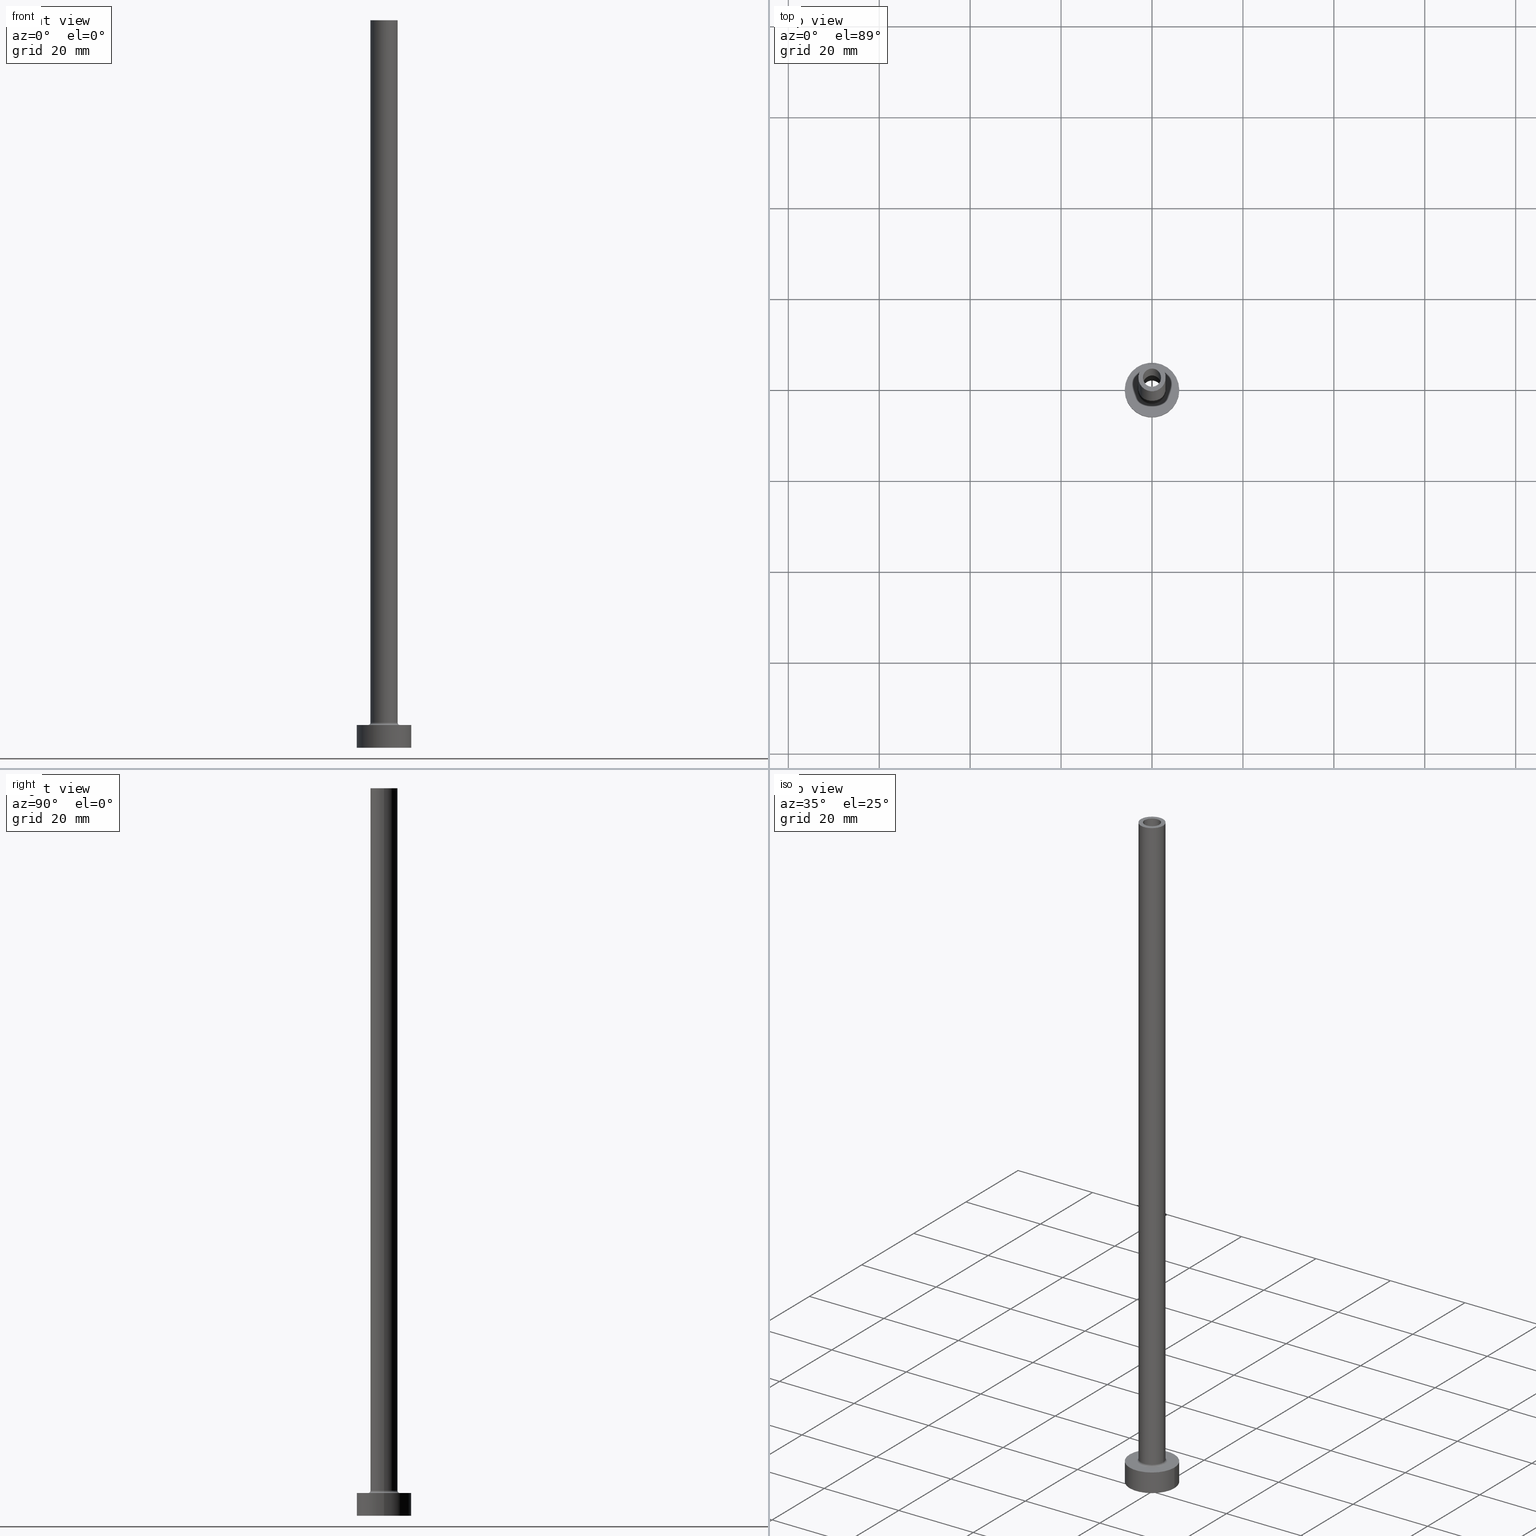
[diagram: canonical four-view strip — front | top / right | iso, engineering-drawing reading convention]
A machine part, canonical four-view strip (front | top / right | iso — engineering-drawing reading convention). The complete STEP part file that produces these views, byte-faithful:
ISO-10303-21;
HEADER;
FILE_DESCRIPTION (( 'STEP AP203' ),
    '1' );
FILE_NAME ('4445.STEP',
    '2023-02-13T11:09:07',
    ( '' ),
    ( '' ),
    'SwSTEP 2.0',
    'SolidWorks 2019',
    '' );
FILE_SCHEMA (( 'CONFIG_CONTROL_DESIGN' ));
ENDSEC;

DATA;
#1 = EDGE_LOOP ( 'NONE', ( #184, #66, #251, #192 ) ) ;
#2 = EDGE_CURVE ( 'NONE', #70, #95, #385, .T. ) ;
#3 = ADVANCED_FACE ( 'NONE', ( #197 ), #239, .F. ) ;
#4 = DIRECTION ( 'NONE',  ( 1.224646799147353207E-16, 1.000000000000000000, -0.000000000000000000 ) ) ;
#5 = EDGE_LOOP ( 'NONE', ( #178, #367, #235, #407 ) ) ;
#6 = CARTESIAN_POINT ( 'NONE',  ( 3.000000000000000444, 3.673940397442060361E-16, 160.0000000000000000 ) ) ;
#7 = AXIS2_PLACEMENT_3D ( 'NONE', #259, #52, #336 ) ;
#8 = MANIFOLD_SOLID_BREP ( 'Odebrat vysunut�m4', #379 ) ;
#9 = CARTESIAN_POINT ( 'NONE',  ( 0.000000000000000000, 0.000000000000000000, 5.000000000000000000 ) ) ;
#10 = ADVANCED_FACE ( 'NONE', ( #301 ), #418, .T. ) ;
#11 = FACE_BOUND ( 'NONE', #283, .T. ) ;
#12 = EDGE_CURVE ( 'NONE', #255, #173, #331, .T. ) ;
#13 = EDGE_LOOP ( 'NONE', ( #241, #121 ) ) ;
#14 = CARTESIAN_POINT ( 'NONE',  ( 0.000000000000000000, 0.000000000000000000, 5.000000000000000000 ) ) ;
#15 = DIRECTION ( 'NONE',  ( 0.000000000000000000, 0.000000000000000000, -1.000000000000000000 ) ) ;
#16 = AXIS2_PLACEMENT_3D ( 'NONE', #256, #228, #370 ) ;
#17 = LOCAL_TIME ( 12, 9, 7.000000000000000000, #368 ) ;
#18 = DIRECTION ( 'NONE',  ( 1.000000000000000000, 0.000000000000000000, 0.000000000000000000 ) ) ;
#19 = DIRECTION ( 'NONE',  ( 1.000000000000000000, 0.000000000000000000, 0.000000000000000000 ) ) ;
#20 = DESIGN_CONTEXT ( 'detailed design', #391, 'design' ) ;
#21 = ADVANCED_FACE ( 'NONE', ( #307 ), #157, .T. ) ;
#22 = CARTESIAN_POINT ( 'NONE',  ( 0.000000000000000000, 0.000000000000000000, 121.0811183182043322 ) ) ;
#23 = CARTESIAN_POINT ( 'NONE',  ( 3.500000000000000444, 0.000000000000000000, 5.000000000000002665 ) ) ;
#24 = AXIS2_PLACEMENT_3D ( 'NONE', #246, #138, #287 ) ;
#25 = PERSON_AND_ORGANIZATION ( #388, #333 ) ;
#26 = AXIS2_PLACEMENT_3D ( 'NONE', #409, #93, #445 ) ;
#27 = CC_DESIGN_APPROVAL ( #303, ( #87 ) ) ;
#28 = CYLINDRICAL_SURFACE ( 'NONE', #381, 6.000000000000000888 ) ;
#29 = DIRECTION ( 'NONE',  ( 0.000000000000000000, 0.000000000000000000, 1.000000000000000000 ) ) ;
#30 = CARTESIAN_POINT ( 'NONE',  ( 0.000000000000000000, 0.000000000000000000, 160.0000000000000000 ) ) ;
#31 = PERSON_AND_ORGANIZATION ( #388, #333 ) ;
#32 = CARTESIAN_POINT ( 'NONE',  ( -6.000000000000000888, 0.000000000000000000, 0.000000000000000000 ) ) ;
#33 = VERTEX_POINT ( 'NONE', #32 ) ;
#34 = ORIENTED_EDGE ( 'NONE', *, *, #242, .T. ) ;
#35 =( GEOMETRIC_REPRESENTATION_CONTEXT ( 3 ) GLOBAL_UNCERTAINTY_ASSIGNED_CONTEXT ( ( #47 ) ) GLOBAL_UNIT_ASSIGNED_CONTEXT ( ( #124, #263, #160 ) ) REPRESENTATION_CONTEXT ( 'NONE', 'WORKASPACE' ) );
#36 = DIRECTION ( 'NONE',  ( -0.000000000000000000, -0.000000000000000000, -1.000000000000000000 ) ) ;
#37 = CC_DESIGN_PERSON_AND_ORGANIZATION_ASSIGNMENT ( #419, #350, ( #312 ) ) ;
#38 = EDGE_CURVE ( 'NONE', #95, #70, #140, .T. ) ;
#39 = ORIENTED_EDGE ( 'NONE', *, *, #275, .T. ) ;
#40 = CARTESIAN_POINT ( 'NONE',  ( 0.000000000000000000, 0.000000000000000000, 115.0000000000000000 ) ) ;
#41 = ORIENTED_EDGE ( 'NONE', *, *, #199, .F. ) ;
#42 = ORIENTED_EDGE ( 'NONE', *, *, #223, .T. ) ;
#43 = LINE ( 'NONE', #6, #448 ) ;
#44 = ORIENTED_EDGE ( 'NONE', *, *, #223, .F. ) ;
#45 = DIRECTION ( 'NONE',  ( 0.000000000000000000, 0.000000000000000000, -1.000000000000000000 ) ) ;
#46 = VECTOR ( 'NONE', #45, 1000.000000000000000 ) ;
#47 = UNCERTAINTY_MEASURE_WITH_UNIT (LENGTH_MEASURE( 1.000000000000000082E-05 ), #124, 'distance_accuracy_value', 'NONE');
#48 = DIRECTION ( 'NONE',  ( -0.000000000000000000, -0.000000000000000000, -1.000000000000000000 ) ) ;
#49 = FACE_OUTER_BOUND ( 'NONE', #133, .T. ) ;
#50 = DIRECTION ( 'NONE',  ( 1.000000000000000000, 0.000000000000000000, -0.000000000000000000 ) ) ;
#51 = DIRECTION ( 'NONE',  ( 0.000000000000000000, 0.000000000000000000, 1.000000000000000000 ) ) ;
#52 = DIRECTION ( 'NONE',  ( 0.000000000000000000, 0.000000000000000000, 1.000000000000000000 ) ) ;
#53 = FACE_OUTER_BOUND ( 'NONE', #220, .T. ) ;
#54 = AXIS2_PLACEMENT_3D ( 'NONE', #297, #443, #122 ) ;
#55 = ORIENTED_EDGE ( 'NONE', *, *, #180, .T. ) ;
#56 = PERSON_AND_ORGANIZATION ( #388, #333 ) ;
#57 = PERSON_AND_ORGANIZATION_ROLE ( 'design_supplier' ) ;
#58 = CARTESIAN_POINT ( 'NONE',  ( 0.000000000000000000, 0.000000000000000000, 5.500000000000005329 ) ) ;
#59 = DIRECTION ( 'NONE',  ( -1.000000000000000000, 0.000000000000000000, 0.000000000000000000 ) ) ;
#60 = CIRCLE ( 'NONE', #371, 0.5000000000000004441 ) ;
#61 = ORIENTED_EDGE ( 'NONE', *, *, #413, .F. ) ;
#62 = COORDINATED_UNIVERSAL_TIME_OFFSET ( 1, 0, .AHEAD. ) ;
#63 = EDGE_CURVE ( 'NONE', #255, #432, #447, .T. ) ;
#64 = DIRECTION ( 'NONE',  ( 1.000000000000000000, 0.000000000000000000, 0.000000000000000000 ) ) ;
#65 = ORIENTED_EDGE ( 'NONE', *, *, #2, .T. ) ;
#66 = ORIENTED_EDGE ( 'NONE', *, *, #78, .T. ) ;
#67 = DIRECTION ( 'NONE',  ( 1.000000000000000000, 0.000000000000000000, -0.000000000000000000 ) ) ;
#68 = VERTEX_POINT ( 'NONE', #23 ) ;
#69 = ADVANCED_FACE ( 'NONE', ( #373 ), #269, .F. ) ;
#70 = VERTEX_POINT ( 'NONE', #280 ) ;
#71 = CIRCLE ( 'NONE', #171, 2.000000000000000000 ) ;
#72 = ORIENTED_EDGE ( 'NONE', *, *, #63, .F. ) ;
#73 = EDGE_CURVE ( 'NONE', #33, #258, #363, .T. ) ;
#74 = DIRECTION ( 'NONE',  ( 1.000000000000000000, 0.000000000000000000, 0.000000000000000000 ) ) ;
#75 = ADVANCED_FACE ( 'NONE', ( #433 ), #277, .F. ) ;
#76 = CARTESIAN_POINT ( 'NONE',  ( 0.000000000000000000, 0.000000000000000000, 0.000000000000000000 ) ) ;
#77 = VERTEX_POINT ( 'NONE', #359 ) ;
#78 = EDGE_CURVE ( 'NONE', #362, #383, #43, .T. ) ;
#79 = CIRCLE ( 'NONE', #54, 6.000000000000000888 ) ;
#80 = ORIENTED_EDGE ( 'NONE', *, *, #204, .T. ) ;
#81 = ORIENTED_EDGE ( 'NONE', *, *, #143, .T. ) ;
#82 = LINE ( 'NONE', #217, #46 ) ;
#83 = ORIENTED_EDGE ( 'NONE', *, *, #63, .T. ) ;
#84 = APPLICATION_CONTEXT ( 'configuration controlled 3d designs of mechanical parts and assemblies' ) ;
#85 = CARTESIAN_POINT ( 'NONE',  ( 0.000000000000000000, 0.000000000000000000, 0.000000000000000000 ) ) ;
#86 = CIRCLE ( 'NONE', #212, 2.149999999999999911 ) ;
#87 = PRODUCT_DEFINITION_FORMATION_WITH_SPECIFIED_SOURCE ( 'LIBOVOLN�', '', #337, .NOT_KNOWN. ) ;
#88 = ORIENTED_EDGE ( 'NONE', *, *, #242, .F. ) ;
#89 = DATE_TIME_ROLE ( 'classification_date' ) ;
#90 = DIRECTION ( 'NONE',  ( -0.000000000000000000, -0.000000000000000000, -1.000000000000000000 ) ) ;
#91 = CC_DESIGN_PERSON_AND_ORGANIZATION_ASSIGNMENT ( #150, #216, ( #225 ) ) ;
#92 = CYLINDRICAL_SURFACE ( 'NONE', #183, 2.149999999999999911 ) ;
#93 = DIRECTION ( 'NONE',  ( 0.000000000000000000, 0.000000000000000000, 1.000000000000000000 ) ) ;
#94 = EDGE_CURVE ( 'NONE', #460, #33, #372, .T. ) ;
#95 = VERTEX_POINT ( 'NONE', #196 ) ;
#96 = CARTESIAN_POINT ( 'NONE',  ( 2.000000000000000000, 2.449293598294705921E-16, 115.0000000000000000 ) ) ;
#97 = DIRECTION ( 'NONE',  ( 1.000000000000000000, 0.000000000000000000, 0.000000000000000000 ) ) ;
#98 = AXIS2_PLACEMENT_3D ( 'NONE', #58, #170, #456 ) ;
#99 = APPROVAL_ROLE ( '' ) ;
#100 = PERSON_AND_ORGANIZATION_ROLE ( 'design_owner' ) ;
#101 = AXIS2_PLACEMENT_3D ( 'NONE', #404, #90, #302 ) ;
#102 = ORIENTED_EDGE ( 'NONE', *, *, #358, .F. ) ;
#103 = DIRECTION ( 'NONE',  ( 0.000000000000000000, -1.000000000000000000, 0.000000000000000000 ) ) ;
#104 = SECURITY_CLASSIFICATION_LEVEL ( 'unclassified' ) ;
#105 = EDGE_LOOP ( 'NONE', ( #424, #137 ) ) ;
#106 = COORDINATED_UNIVERSAL_TIME_OFFSET ( 1, 0, .AHEAD. ) ;
#107 = ORIENTED_EDGE ( 'NONE', *, *, #369, .T. ) ;
#108 = AXIS2_PLACEMENT_3D ( 'NONE', #332, #15, #117 ) ;
#109 = DIRECTION ( 'NONE',  ( -1.000000000000000000, 0.000000000000000000, 0.000000000000000000 ) ) ;
#110 = ORIENTED_EDGE ( 'NONE', *, *, #168, .F. ) ;
#111 = ADVANCED_FACE ( 'NONE', ( #444 ), #135, .F. ) ;
#112 = DIRECTION ( 'NONE',  ( 1.000000000000000000, 0.000000000000000000, 0.000000000000000000 ) ) ;
#113 = DIRECTION ( 'NONE',  ( 0.000000000000000000, 0.000000000000000000, 1.000000000000000000 ) ) ;
#114 = AXIS2_PLACEMENT_3D ( 'NONE', #285, #146, #97 ) ;
#115 = ORIENTED_EDGE ( 'NONE', *, *, #304, .F. ) ;
#116 = CARTESIAN_POINT ( 'NONE',  ( 2.149999999999999911, 2.632990618166809235E-16, 0.000000000000000000 ) ) ;
#117 = DIRECTION ( 'NONE',  ( -1.000000000000000000, 0.000000000000000000, 0.000000000000000000 ) ) ;
#118 = ADVANCED_FACE ( 'NONE', ( #49 ), #92, .F. ) ;
#119 = CARTESIAN_POINT ( 'NONE',  ( 2.000000000000000000, 2.449293598294705921E-16, 160.0000000000000000 ) ) ;
#120 = AXIS2_PLACEMENT_3D ( 'NONE', #253, #113, #176 ) ;
#121 = ORIENTED_EDGE ( 'NONE', *, *, #204, .F. ) ;
#122 = DIRECTION ( 'NONE',  ( 1.000000000000000000, 0.000000000000000000, 0.000000000000000000 ) ) ;
#123 = ORIENTED_EDGE ( 'NONE', *, *, #2, .F. ) ;
#124 =( LENGTH_UNIT ( ) NAMED_UNIT ( * ) SI_UNIT ( .MILLI., .METRE. ) );
#125 = AXIS2_PLACEMENT_3D ( 'NONE', #76, #396, #309 ) ;
#126 = CARTESIAN_POINT ( 'NONE',  ( -2.000000000000000000, 0.000000000000000000, 160.0000000000000000 ) ) ;
#127 = CARTESIAN_POINT ( 'NONE',  ( 0.000000000000000000, 0.000000000000000000, 121.0811183182043322 ) ) ;
#128 = PRODUCT_DEFINITION_SHAPE ( 'NONE', 'NONE',  #312 ) ;
#129 = DATE_AND_TIME ( #306, #414 ) ;
#130 = APPROVAL_STATUS ( 'not_yet_approved' ) ;
#131 = APPROVAL_PERSON_ORGANIZATION ( #56, #300, #99 ) ;
#132 = ORIENTED_EDGE ( 'NONE', *, *, #168, .T. ) ;
#133 = EDGE_LOOP ( 'NONE', ( #44, #179, #291, #81 ) ) ;
#134 = PLANE ( 'NONE',  #125 ) ;
#135 = TOROIDAL_SURFACE ( 'NONE', #7, 3.500000000000000444, 0.5000000000000000000 ) ;
#136 = APPROVAL_PERSON_ORGANIZATION ( #31, #303, #450 ) ;
#137 = ORIENTED_EDGE ( 'NONE', *, *, #454, .F. ) ;
#138 = DIRECTION ( 'NONE',  ( 0.000000000000000000, 0.000000000000000000, 1.000000000000000000 ) ) ;
#139 = EDGE_LOOP ( 'NONE', ( #416, #107 ) ) ;
#140 = CIRCLE ( 'NONE', #264, 2.149999999999999911 ) ;
#141 = DIRECTION ( 'NONE',  ( 1.000000000000000000, 0.000000000000000000, -0.000000000000000000 ) ) ;
#142 = CIRCLE ( 'NONE', #16, 6.000000000000000888 ) ;
#143 = EDGE_CURVE ( 'NONE', #353, #172, #86, .T. ) ;
#144 = PLANE ( 'NONE',  #294 ) ;
#145 = PERSON_AND_ORGANIZATION ( #388, #333 ) ;
#146 = DIRECTION ( 'NONE',  ( -0.000000000000000000, -0.000000000000000000, -1.000000000000000000 ) ) ;
#147 = LINE ( 'NONE', #408, #364 ) ;
#148 = DIRECTION ( 'NONE',  ( 0.000000000000000000, 0.000000000000000000, -1.000000000000000000 ) ) ;
#149 = AXIS2_PLACEMENT_3D ( 'NONE', #380, #335, #59 ) ;
#150 = PERSON_AND_ORGANIZATION ( #388, #333 ) ;
#151 = AXIS2_PLACEMENT_3D ( 'NONE', #227, #257, #50 ) ;
#152 = PLANE ( 'NONE',  #151 ) ;
#153 = ORIENTED_EDGE ( 'NONE', *, *, #12, .F. ) ;
#154 = EDGE_CURVE ( 'NONE', #326, #258, #147, .T. ) ;
#155 = FACE_OUTER_BOUND ( 'NONE', #395, .T. ) ;
#156 = CARTESIAN_POINT ( 'NONE',  ( -2.149999999999999911, 0.000000000000000000, 121.0811183182043322 ) ) ;
#157 = CYLINDRICAL_SURFACE ( 'NONE', #412, 3.000000000000000444 ) ;
#158 = DIRECTION ( 'NONE',  ( -0.000000000000000000, -0.000000000000000000, -1.000000000000000000 ) ) ;
#159 = EDGE_CURVE ( 'NONE', #173, #255, #221, .T. ) ;
#160 =( NAMED_UNIT ( * ) SI_UNIT ( $, .STERADIAN. ) SOLID_ANGLE_UNIT ( ) );
#161 = AXIS2_PLACEMENT_3D ( 'NONE', #356, #314, #431 ) ;
#162 = CARTESIAN_POINT ( 'NONE',  ( 0.000000000000000000, 0.000000000000000000, 160.0000000000000000 ) ) ;
#163 = PERSON_AND_ORGANIZATION ( #388, #333 ) ;
#164 = VECTOR ( 'NONE', #289, 1000.000000000000000 ) ;
#165 = DIRECTION ( 'NONE',  ( 0.000000000000000000, 0.000000000000000000, 1.000000000000000000 ) ) ;
#166 = FACE_OUTER_BOUND ( 'NONE', #139, .T. ) ;
#167 = APPROVAL_STATUS ( 'not_yet_approved' ) ;
#168 = EDGE_CURVE ( 'NONE', #326, #460, #428, .T. ) ;
#169 = CC_DESIGN_PERSON_AND_ORGANIZATION_ASSIGNMENT ( #453, #100, ( #337 ) ) ;
#170 = DIRECTION ( 'NONE',  ( 0.000000000000000000, 0.000000000000000000, 1.000000000000000000 ) ) ;
#171 = AXIS2_PLACEMENT_3D ( 'NONE', #202, #29, #219 ) ;
#172 = VERTEX_POINT ( 'NONE', #116 ) ;
#173 = VERTEX_POINT ( 'NONE', #119 ) ;
#174 = ORIENTED_EDGE ( 'NONE', *, *, #406, .F. ) ;
#175 = AXIS2_PLACEMENT_3D ( 'NONE', #189, #158, #19 ) ;
#176 = DIRECTION ( 'NONE',  ( 1.000000000000000000, 0.000000000000000000, 0.000000000000000000 ) ) ;
#177 = EDGE_LOOP ( 'NONE', ( #55, #132 ) ) ;
#178 = ORIENTED_EDGE ( 'NONE', *, *, #154, .F. ) ;
#179 = ORIENTED_EDGE ( 'NONE', *, *, #38, .T. ) ;
#180 = EDGE_CURVE ( 'NONE', #460, #326, #142, .T. ) ;
#181 = CALENDAR_DATE ( 2023, 13, 2 ) ;
#182 = DIRECTION ( 'NONE',  ( 1.000000000000000000, 0.000000000000000000, 0.000000000000000000 ) ) ;
#183 = AXIS2_PLACEMENT_3D ( 'NONE', #22, #224, #252 ) ;
#184 = ORIENTED_EDGE ( 'NONE', *, *, #369, .F. ) ;
#185 = CALENDAR_DATE ( 2023, 13, 2 ) ;
#186 = DIRECTION ( 'NONE',  ( -0.000000000000000000, -0.000000000000000000, -1.000000000000000000 ) ) ;
#187 = ORIENTED_EDGE ( 'NONE', *, *, #344, .T. ) ;
#188 = DATE_AND_TIME ( #185, #268 ) ;
#189 = CARTESIAN_POINT ( 'NONE',  ( 0.000000000000000000, 0.000000000000000000, 5.000000000000000000 ) ) ;
#190 = CARTESIAN_POINT ( 'NONE',  ( -2.000000000000000000, 0.000000000000000000, 115.0000000000000000 ) ) ;
#191 = AXIS2_PLACEMENT_3D ( 'NONE', #30, #165, #64 ) ;
#192 = ORIENTED_EDGE ( 'NONE', *, *, #275, .F. ) ;
#193 = DIRECTION ( 'NONE',  ( 0.000000000000000000, 0.000000000000000000, 1.000000000000000000 ) ) ;
#194 = CC_DESIGN_APPROVAL ( #300, ( #312 ) ) ;
#195 = LINE ( 'NONE', #156, #201 ) ;
#196 = CARTESIAN_POINT ( 'NONE',  ( 2.149999999999999911, 2.632990618166809235E-16, 115.0000000000000000 ) ) ;
#197 = FACE_OUTER_BOUND ( 'NONE', #274, .T. ) ;
#198 = DATE_AND_TIME ( #375, #352 ) ;
#199 = EDGE_CURVE ( 'NONE', #68, #430, #441, .T. ) ;
#200 = AXIS2_PLACEMENT_3D ( 'NONE', #213, #321, #112 ) ;
#201 = VECTOR ( 'NONE', #148, 1000.000000000000000 ) ;
#202 = CARTESIAN_POINT ( 'NONE',  ( 0.000000000000000000, 0.000000000000000000, 115.0000000000000000 ) ) ;
#203 = CC_DESIGN_PERSON_AND_ORGANIZATION_ASSIGNMENT ( #25, #305, ( #87 ) ) ;
#204 = EDGE_CURVE ( 'NONE', #172, #353, #278, .T. ) ;
#205 = DIRECTION ( 'NONE',  ( -1.000000000000000000, 0.000000000000000000, 0.000000000000000000 ) ) ;
#206 = APPROVAL_DATE_TIME ( #423, #300 ) ;
#207 = CIRCLE ( 'NONE', #98, 3.000000000000000444 ) ;
#208 = APPROVAL_PERSON_ORGANIZATION ( #145, #382, #222 ) ;
#209 = ORIENTED_EDGE ( 'NONE', *, *, #406, .T. ) ;
#210 = DIRECTION ( 'NONE',  ( 1.000000000000000000, 0.000000000000000000, 0.000000000000000000 ) ) ;
#211 = FACE_OUTER_BOUND ( 'NONE', #397, .T. ) ;
#212 = AXIS2_PLACEMENT_3D ( 'NONE', #85, #366, #262 ) ;
#213 = CARTESIAN_POINT ( 'NONE',  ( 0.000000000000000000, 0.000000000000000000, 5.500000000000005329 ) ) ;
#214 = FACE_BOUND ( 'NONE', #266, .T. ) ;
#215 = ORIENTED_EDGE ( 'NONE', *, *, #420, .F. ) ;
#216 = PERSON_AND_ORGANIZATION_ROLE ( 'classification_officer' ) ;
#217 = CARTESIAN_POINT ( 'NONE',  ( 2.149999999999999911, 2.632990618166809235E-16, 121.0811183182043322 ) ) ;
#218 = CC_DESIGN_PERSON_AND_ORGANIZATION_ASSIGNMENT ( #163, #57, ( #87 ) ) ;
#219 = DIRECTION ( 'NONE',  ( 1.000000000000000000, 0.000000000000000000, 0.000000000000000000 ) ) ;
#220 = EDGE_LOOP ( 'NONE', ( #88, #387, #83, #279 ) ) ;
#221 = CIRCLE ( 'NONE', #455, 2.000000000000000000 ) ;
#222 = APPROVAL_ROLE ( '' ) ;
#223 = EDGE_CURVE ( 'NONE', #95, #172, #82, .T. ) ;
#224 = DIRECTION ( 'NONE',  ( 0.000000000000000000, 0.000000000000000000, -1.000000000000000000 ) ) ;
#225 = SECURITY_CLASSIFICATION ( '', '', #104 ) ;
#226 = LINE ( 'NONE', #330, #164 ) ;
#227 = CARTESIAN_POINT ( 'NONE',  ( 0.000000000000000000, 0.000000000000000000, 5.000000000000000000 ) ) ;
#228 = DIRECTION ( 'NONE',  ( 0.000000000000000000, 0.000000000000000000, 1.000000000000000000 ) ) ;
#229 = DIRECTION ( 'NONE',  ( 0.000000000000000000, 0.000000000000000000, -1.000000000000000000 ) ) ;
#230 = DIRECTION ( 'NONE',  ( 1.000000000000000000, 0.000000000000000000, 0.000000000000000000 ) ) ;
#231 = CIRCLE ( 'NONE', #386, 3.000000000000000444 ) ;
#232 = ORIENTED_EDGE ( 'NONE', *, *, #159, .F. ) ;
#233 = DIRECTION ( 'NONE',  ( 0.000000000000000000, 0.000000000000000000, 1.000000000000000000 ) ) ;
#234 = CYLINDRICAL_SURFACE ( 'NONE', #108, 2.000000000000000000 ) ;
#235 = ORIENTED_EDGE ( 'NONE', *, *, #94, .T. ) ;
#236 = CALENDAR_DATE ( 2023, 13, 2 ) ;
#237 = AXIS2_PLACEMENT_3D ( 'NONE', #340, #343, #449 ) ;
#238 = AXIS2_PLACEMENT_3D ( 'NONE', #14, #193, #182 ) ;
#239 = CYLINDRICAL_SURFACE ( 'NONE', #349, 2.149999999999999911 ) ;
#240 = CC_DESIGN_APPROVAL ( #382, ( #225 ) ) ;
#241 = ORIENTED_EDGE ( 'NONE', *, *, #143, .F. ) ;
#242 = EDGE_CURVE ( 'NONE', #173, #261, #226, .T. ) ;
#243 = CIRCLE ( 'NONE', #120, 2.000000000000000000 ) ;
#244 = DIRECTION ( 'NONE',  ( 0.000000000000000000, 0.000000000000000000, 1.000000000000000000 ) ) ;
#245 = ADVANCED_FACE ( 'NONE', ( #155 ), #325, .T. ) ;
#246 = CARTESIAN_POINT ( 'NONE',  ( 0.000000000000000000, 0.000000000000000000, 0.000000000000000000 ) ) ;
#247 = FACE_OUTER_BOUND ( 'NONE', #105, .T. ) ;
#248 = CIRCLE ( 'NONE', #286, 0.4999999999999995559 ) ;
#249 = ORIENTED_EDGE ( 'NONE', *, *, #358, .T. ) ;
#250 = DIRECTION ( 'NONE',  ( -1.000000000000000000, 1.224646799147354440E-16, 0.000000000000000000 ) ) ;
#251 = ORIENTED_EDGE ( 'NONE', *, *, #339, .T. ) ;
#252 = DIRECTION ( 'NONE',  ( -1.000000000000000000, 0.000000000000000000, 0.000000000000000000 ) ) ;
#253 = CARTESIAN_POINT ( 'NONE',  ( 0.000000000000000000, 0.000000000000000000, 115.0000000000000000 ) ) ;
#254 = CARTESIAN_POINT ( 'NONE',  ( 6.000000000000000888, 7.347880794884120722E-16, 0.000000000000000000 ) ) ;
#255 = VERTEX_POINT ( 'NONE', #411 ) ;
#256 = CARTESIAN_POINT ( 'NONE',  ( 0.000000000000000000, 0.000000000000000000, 5.000000000000000000 ) ) ;
#257 = DIRECTION ( 'NONE',  ( 0.000000000000000000, 0.000000000000000000, 1.000000000000000000 ) ) ;
#258 = VERTEX_POINT ( 'NONE', #254 ) ;
#259 = CARTESIAN_POINT ( 'NONE',  ( 0.000000000000000000, 0.000000000000000000, 5.500000000000005329 ) ) ;
#260 = CARTESIAN_POINT ( 'NONE',  ( -3.500000000000000444, 4.286263797015737088E-16, 5.000000000000002665 ) ) ;
#261 = VERTEX_POINT ( 'NONE', #96 ) ;
#262 = DIRECTION ( 'NONE',  ( 1.000000000000000000, 0.000000000000000000, 0.000000000000000000 ) ) ;
#263 =( NAMED_UNIT ( * ) PLANE_ANGLE_UNIT ( ) SI_UNIT ( $, .RADIAN. ) );
#264 = AXIS2_PLACEMENT_3D ( 'NONE', #390, #51, #18 ) ;
#265 = CARTESIAN_POINT ( 'NONE',  ( 0.000000000000000000, 0.000000000000000000, 160.0000000000000000 ) ) ;
#266 = EDGE_LOOP ( 'NONE', ( #209, #187 ) ) ;
#267 = APPLICATION_PROTOCOL_DEFINITION ( 'international standard', 'config_control_design', 1994, #84 ) ;
#268 = LOCAL_TIME ( 12, 9, 7.000000000000000000, #365 ) ;
#269 = CYLINDRICAL_SURFACE ( 'NONE', #161, 2.000000000000000000 ) ;
#270 = APPLICATION_PROTOCOL_DEFINITION ( 'international standard', 'config_control_design', 1994, #391 ) ;
#271 = DIRECTION ( 'NONE',  ( -1.000000000000000000, 0.000000000000000000, 0.000000000000000000 ) ) ;
#272 = DIRECTION ( 'NONE',  ( 1.000000000000000000, 0.000000000000000000, 0.000000000000000000 ) ) ;
#273 = AXIS2_PLACEMENT_3D ( 'NONE', #162, #233, #67 ) ;
#274 = EDGE_LOOP ( 'NONE', ( #65, #42, #80, #215 ) ) ;
#275 = EDGE_CURVE ( 'NONE', #328, #77, #401, .T. ) ;
#276 = MECHANICAL_CONTEXT ( 'NONE', #84, 'mechanical' ) ;
#277 = TOROIDAL_SURFACE ( 'NONE', #200, 3.500000000000000444, 0.5000000000000000000 ) ;
#278 = CIRCLE ( 'NONE', #101, 2.149999999999999911 ) ;
#279 = ORIENTED_EDGE ( 'NONE', *, *, #344, .F. ) ;
#280 = CARTESIAN_POINT ( 'NONE',  ( -2.149999999999999911, 0.000000000000000000, 115.0000000000000000 ) ) ;
#281 = DIRECTION ( 'NONE',  ( 0.000000000000000000, 0.000000000000000000, 1.000000000000000000 ) ) ;
#282 = ORIENTED_EDGE ( 'NONE', *, *, #413, .T. ) ;
#283 = EDGE_LOOP ( 'NONE', ( #392, #282 ) ) ;
#284 = CARTESIAN_POINT ( 'NONE',  ( 6.000000000000000888, 7.347880794884120722E-16, 5.000000000000000000 ) ) ;
#285 = CARTESIAN_POINT ( 'NONE',  ( 0.000000000000000000, 0.000000000000000000, 5.000000000000000000 ) ) ;
#286 = AXIS2_PLACEMENT_3D ( 'NONE', #318, #4, #250 ) ;
#287 = DIRECTION ( 'NONE',  ( 1.000000000000000000, 0.000000000000000000, 0.000000000000000000 ) ) ;
#288 = ORIENTED_EDGE ( 'NONE', *, *, #457, .F. ) ;
#289 = DIRECTION ( 'NONE',  ( 0.000000000000000000, 0.000000000000000000, -1.000000000000000000 ) ) ;
#290 = ADVANCED_FACE ( 'NONE', ( #377, #166 ), #415, .T. ) ;
#291 = ORIENTED_EDGE ( 'NONE', *, *, #420, .T. ) ;
#292 = CARTESIAN_POINT ( 'NONE',  ( 0.000000000000000000, 0.000000000000000000, 160.0000000000000000 ) ) ;
#293 = ORIENTED_EDGE ( 'NONE', *, *, #304, .T. ) ;
#294 = AXIS2_PLACEMENT_3D ( 'NONE', #40, #393, #141 ) ;
#295 = CARTESIAN_POINT ( 'NONE',  ( -6.000000000000000888, 0.000000000000000000, 5.000000000000000000 ) ) ;
#296 = PRODUCT_RELATED_PRODUCT_CATEGORY ( 'detail', '', ( #337 ) ) ;
#297 = CARTESIAN_POINT ( 'NONE',  ( 0.000000000000000000, 0.000000000000000000, 0.000000000000000000 ) ) ;
#298 = EDGE_LOOP ( 'NONE', ( #402, #249, #41, #115 ) ) ;
#299 = DIRECTION ( 'NONE',  ( -0.000000000000000000, -0.000000000000000000, -1.000000000000000000 ) ) ;
#300 = APPROVAL ( #130, 'NEUR�EN�' ) ;
#301 = FACE_OUTER_BOUND ( 'NONE', #1, .T. ) ;
#302 = DIRECTION ( 'NONE',  ( 1.000000000000000000, 0.000000000000000000, 0.000000000000000000 ) ) ;
#303 = APPROVAL ( #167, 'NEUR�EN�' ) ;
#304 = EDGE_CURVE ( 'NONE', #383, #68, #60, .T. ) ;
#305 = PERSON_AND_ORGANIZATION_ROLE ( 'creator' ) ;
#306 = CALENDAR_DATE ( 2023, 13, 2 ) ;
#307 = FACE_OUTER_BOUND ( 'NONE', #376, .T. ) ;
#308 = APPROVAL_DATE_TIME ( #198, #303 ) ;
#309 = DIRECTION ( 'NONE',  ( 1.000000000000000000, 0.000000000000000000, -0.000000000000000000 ) ) ;
#310 = DIRECTION ( 'NONE',  ( -0.000000000000000000, -0.000000000000000000, -1.000000000000000000 ) ) ;
#311 = CIRCLE ( 'NONE', #26, 3.000000000000000444 ) ;
#312 = PRODUCT_DEFINITION ( 'NEZN�M�', '', #87, #20 ) ;
#313 = CARTESIAN_POINT ( 'NONE',  ( 0.000000000000000000, 0.000000000000000000, 5.000000000000000000 ) ) ;
#314 = DIRECTION ( 'NONE',  ( 0.000000000000000000, 0.000000000000000000, -1.000000000000000000 ) ) ;
#315 = CARTESIAN_POINT ( 'NONE',  ( 0.000000000000000000, 0.000000000000000000, 5.500000000000005329 ) ) ;
#316 = CIRCLE ( 'NONE', #114, 3.500000000000000444 ) ;
#317 = EDGE_LOOP ( 'NONE', ( #348, #34, #174, #72 ) ) ;
#318 = CARTESIAN_POINT ( 'NONE',  ( -3.500000000000000444, 4.286263797015737088E-16, 5.500000000000005329 ) ) ;
#319 = VECTOR ( 'NONE', #338, 1000.000000000000000 ) ;
#320 = ADVANCED_FACE ( 'NONE', ( #374 ), #28, .T. ) ;
#321 = DIRECTION ( 'NONE',  ( 0.000000000000000000, 0.000000000000000000, 1.000000000000000000 ) ) ;
#322 = ORIENTED_EDGE ( 'NONE', *, *, #94, .F. ) ;
#323 = AXIS2_PLACEMENT_3D ( 'NONE', #429, #244, #210 ) ;
#324 = DATE_AND_TIME ( #181, #17 ) ;
#325 = CYLINDRICAL_SURFACE ( 'NONE', #427, 6.000000000000000888 ) ;
#326 = VERTEX_POINT ( 'NONE', #284 ) ;
#327 = ADVANCED_FACE ( 'NONE', ( #459, #247 ), #134, .F. ) ;
#328 = VERTEX_POINT ( 'NONE', #347 ) ;
#329 = APPROVAL_DATE_TIME ( #188, #382 ) ;
#330 = CARTESIAN_POINT ( 'NONE',  ( 2.000000000000000000, 2.449293598294705921E-16, 160.0000000000000000 ) ) ;
#331 = CIRCLE ( 'NONE', #191, 2.000000000000000000 ) ;
#332 = CARTESIAN_POINT ( 'NONE',  ( 0.000000000000000000, 0.000000000000000000, 160.0000000000000000 ) ) ;
#333 = ORGANIZATION ( 'NEUR�EN�', 'NEUR�EN�', '' ) ;
#334 = CARTESIAN_POINT ( 'NONE',  ( -6.000000000000000888, 0.000000000000000000, 5.000000000000000000 ) ) ;
#335 = DIRECTION ( 'NONE',  ( -0.000000000000000000, -0.000000000000000000, -1.000000000000000000 ) ) ;
#336 = DIRECTION ( 'NONE',  ( 1.000000000000000000, 0.000000000000000000, 0.000000000000000000 ) ) ;
#337 = PRODUCT ( '4445', '4445', '', ( #276 ) ) ;
#338 = DIRECTION ( 'NONE',  ( 0.000000000000000000, 0.000000000000000000, -1.000000000000000000 ) ) ;
#339 = EDGE_CURVE ( 'NONE', #383, #77, #207, .T. ) ;
#340 = CARTESIAN_POINT ( 'NONE',  ( 0.000000000000000000, 0.000000000000000000, 115.0000000000000000 ) ) ;
#341 = CC_DESIGN_SECURITY_CLASSIFICATION ( #225, ( #87 ) ) ;
#342 = DIRECTION ( 'NONE',  ( 0.000000000000000000, 0.000000000000000000, 1.000000000000000000 ) ) ;
#343 = DIRECTION ( 'NONE',  ( 0.000000000000000000, 0.000000000000000000, 1.000000000000000000 ) ) ;
#344 = EDGE_CURVE ( 'NONE', #261, #432, #71, .T. ) ;
#345 = CARTESIAN_POINT ( 'NONE',  ( -3.000000000000000444, 0.000000000000000000, 160.0000000000000000 ) ) ;
#346 = DATE_TIME_ROLE ( 'creation_date' ) ;
#347 = CARTESIAN_POINT ( 'NONE',  ( -3.000000000000000444, 0.000000000000000000, 160.0000000000000000 ) ) ;
#348 = ORIENTED_EDGE ( 'NONE', *, *, #12, .T. ) ;
#349 = AXIS2_PLACEMENT_3D ( 'NONE', #127, #229, #271 ) ;
#350 = PERSON_AND_ORGANIZATION_ROLE ( 'creator' ) ;
#351 = AXIS2_PLACEMENT_3D ( 'NONE', #378, #342, #272 ) ;
#352 = LOCAL_TIME ( 12, 9, 7.000000000000000000, #106 ) ;
#353 = VERTEX_POINT ( 'NONE', #436 ) ;
#354 = ORIENTED_EDGE ( 'NONE', *, *, #38, .F. ) ;
#355 = ORIENTED_EDGE ( 'NONE', *, *, #384, .T. ) ;
#356 = CARTESIAN_POINT ( 'NONE',  ( 0.000000000000000000, 0.000000000000000000, 160.0000000000000000 ) ) ;
#357 = ORIENTED_EDGE ( 'NONE', *, *, #154, .T. ) ;
#358 = EDGE_CURVE ( 'NONE', #77, #430, #248, .T. ) ;
#359 = CARTESIAN_POINT ( 'NONE',  ( -3.000000000000000444, 0.000000000000000000, 5.500000000000005329 ) ) ;
#360 = CARTESIAN_POINT ( 'NONE',  ( 3.000000000000000444, 3.673940397442060361E-16, 160.0000000000000000 ) ) ;
#361 = VECTOR ( 'NONE', #310, 1000.000000000000000 ) ;
#362 = VERTEX_POINT ( 'NONE', #360 ) ;
#363 = CIRCLE ( 'NONE', #24, 6.000000000000000888 ) ;
#364 = VECTOR ( 'NONE', #48, 1000.000000000000000 ) ;
#365 = COORDINATED_UNIVERSAL_TIME_OFFSET ( 1, 0, .AHEAD. ) ;
#366 = DIRECTION ( 'NONE',  ( -0.000000000000000000, -0.000000000000000000, -1.000000000000000000 ) ) ;
#367 = ORIENTED_EDGE ( 'NONE', *, *, #180, .F. ) ;
#368 = COORDINATED_UNIVERSAL_TIME_OFFSET ( 1, 0, .AHEAD. ) ;
#369 = EDGE_CURVE ( 'NONE', #362, #328, #434, .T. ) ;
#370 = DIRECTION ( 'NONE',  ( 1.000000000000000000, 0.000000000000000000, 0.000000000000000000 ) ) ;
#371 = AXIS2_PLACEMENT_3D ( 'NONE', #452, #103, #422 ) ;
#372 = LINE ( 'NONE', #295, #403 ) ;
#373 = FACE_OUTER_BOUND ( 'NONE', #317, .T. ) ;
#374 = FACE_OUTER_BOUND ( 'NONE', #5, .T. ) ;
#375 = CALENDAR_DATE ( 2023, 13, 2 ) ;
#376 = EDGE_LOOP ( 'NONE', ( #421, #288, #39, #355 ) ) ;
#377 = FACE_BOUND ( 'NONE', #461, .T. ) ;
#378 = CARTESIAN_POINT ( 'NONE',  ( 0.000000000000000000, 0.000000000000000000, 0.000000000000000000 ) ) ;
#379 = CLOSED_SHELL ( 'NONE', ( #69, #3, #111, #10, #245, #320, #426, #327, #21, #290, #75, #118, #389, #446 ) ) ;
#380 = CARTESIAN_POINT ( 'NONE',  ( 0.000000000000000000, 0.000000000000000000, 160.0000000000000000 ) ) ;
#381 = AXIS2_PLACEMENT_3D ( 'NONE', #313, #36, #109 ) ;
#382 = APPROVAL ( #400, 'NEUR�EN�' ) ;
#383 = VERTEX_POINT ( 'NONE', #399 ) ;
#384 = EDGE_CURVE ( 'NONE', #77, #383, #231, .T. ) ;
#385 = CIRCLE ( 'NONE', #237, 2.149999999999999911 ) ;
#386 = AXIS2_PLACEMENT_3D ( 'NONE', #315, #281, #74 ) ;
#387 = ORIENTED_EDGE ( 'NONE', *, *, #159, .T. ) ;
#388 = PERSON ( 'NEUR�EN�', 'NEUR�EN�', 'NEUR�EN�', ('NEUR�EN�'), ('NEUR�EN�'), ('NEUR�EN�') ) ;
#389 = ADVANCED_FACE ( 'NONE', ( #214, #211 ), #144, .F. ) ;
#390 = CARTESIAN_POINT ( 'NONE',  ( 0.000000000000000000, 0.000000000000000000, 115.0000000000000000 ) ) ;
#391 = APPLICATION_CONTEXT ( 'configuration controlled 3d designs of mechanical parts and assemblies' ) ;
#392 = ORIENTED_EDGE ( 'NONE', *, *, #199, .T. ) ;
#393 = DIRECTION ( 'NONE',  ( 0.000000000000000000, 0.000000000000000000, 1.000000000000000000 ) ) ;
#394 = LOCAL_TIME ( 12, 9, 7.000000000000000000, #425 ) ;
#395 = EDGE_LOOP ( 'NONE', ( #110, #357, #435, #322 ) ) ;
#396 = DIRECTION ( 'NONE',  ( 0.000000000000000000, 0.000000000000000000, 1.000000000000000000 ) ) ;
#397 = EDGE_LOOP ( 'NONE', ( #123, #354 ) ) ;
#398 = DIRECTION ( 'NONE',  ( -0.000000000000000000, -0.000000000000000000, -1.000000000000000000 ) ) ;
#399 = CARTESIAN_POINT ( 'NONE',  ( 3.000000000000000444, 3.673940397442060361E-16, 5.500000000000005329 ) ) ;
#400 = APPROVAL_STATUS ( 'not_yet_approved' ) ;
#401 = LINE ( 'NONE', #345, #361 ) ;
#402 = ORIENTED_EDGE ( 'NONE', *, *, #384, .F. ) ;
#403 = VECTOR ( 'NONE', #186, 1000.000000000000000 ) ;
#404 = CARTESIAN_POINT ( 'NONE',  ( 0.000000000000000000, 0.000000000000000000, 0.000000000000000000 ) ) ;
#405 = FACE_OUTER_BOUND ( 'NONE', #177, .T. ) ;
#406 = EDGE_CURVE ( 'NONE', #432, #261, #243, .T. ) ;
#407 = ORIENTED_EDGE ( 'NONE', *, *, #73, .T. ) ;
#408 = CARTESIAN_POINT ( 'NONE',  ( 6.000000000000000888, 7.347880794884120722E-16, 5.000000000000000000 ) ) ;
#409 = CARTESIAN_POINT ( 'NONE',  ( 0.000000000000000000, 0.000000000000000000, 160.0000000000000000 ) ) ;
#410 = SHAPE_DEFINITION_REPRESENTATION ( #128, #440 ) ;
#411 = CARTESIAN_POINT ( 'NONE',  ( -2.000000000000000000, 0.000000000000000000, 160.0000000000000000 ) ) ;
#412 = AXIS2_PLACEMENT_3D ( 'NONE', #265, #451, #205 ) ;
#413 = EDGE_CURVE ( 'NONE', #430, #68, #316, .T. ) ;
#414 = LOCAL_TIME ( 12, 9, 7.000000000000000000, #62 ) ;
#415 = PLANE ( 'NONE',  #273 ) ;
#416 = ORIENTED_EDGE ( 'NONE', *, *, #457, .T. ) ;
#417 = CC_DESIGN_DATE_AND_TIME_ASSIGNMENT ( #129, #346, ( #312 ) ) ;
#418 = CYLINDRICAL_SURFACE ( 'NONE', #149, 3.000000000000000444 ) ;
#419 = PERSON_AND_ORGANIZATION ( #388, #333 ) ;
#420 = EDGE_CURVE ( 'NONE', #70, #353, #195, .T. ) ;
#421 = ORIENTED_EDGE ( 'NONE', *, *, #78, .F. ) ;
#422 = DIRECTION ( 'NONE',  ( 0.000000000000000000, 0.000000000000000000, -1.000000000000000000 ) ) ;
#423 = DATE_AND_TIME ( #236, #394 ) ;
#424 = ORIENTED_EDGE ( 'NONE', *, *, #73, .F. ) ;
#425 = COORDINATED_UNIVERSAL_TIME_OFFSET ( 1, 0, .AHEAD. ) ;
#426 = ADVANCED_FACE ( 'NONE', ( #11, #405 ), #152, .T. ) ;
#427 = AXIS2_PLACEMENT_3D ( 'NONE', #9, #299, #437 ) ;
#428 = CIRCLE ( 'NONE', #238, 6.000000000000000888 ) ;
#429 = CARTESIAN_POINT ( 'NONE',  ( 0.000000000000000000, 0.000000000000000000, 160.0000000000000000 ) ) ;
#430 = VERTEX_POINT ( 'NONE', #260 ) ;
#431 = DIRECTION ( 'NONE',  ( -1.000000000000000000, 0.000000000000000000, 0.000000000000000000 ) ) ;
#432 = VERTEX_POINT ( 'NONE', #190 ) ;
#433 = FACE_OUTER_BOUND ( 'NONE', #458, .T. ) ;
#434 = CIRCLE ( 'NONE', #323, 3.000000000000000444 ) ;
#435 = ORIENTED_EDGE ( 'NONE', *, *, #454, .T. ) ;
#436 = CARTESIAN_POINT ( 'NONE',  ( -2.149999999999999911, 0.000000000000000000, 0.000000000000000000 ) ) ;
#437 = DIRECTION ( 'NONE',  ( -1.000000000000000000, 0.000000000000000000, 0.000000000000000000 ) ) ;
#438 = ORIENTED_EDGE ( 'NONE', *, *, #339, .F. ) ;
#439 = DIRECTION ( 'NONE',  ( 0.000000000000000000, 0.000000000000000000, 1.000000000000000000 ) ) ;
#440 = ADVANCED_BREP_SHAPE_REPRESENTATION ( '4445', ( #8, #351 ), #35 ) ;
#441 = CIRCLE ( 'NONE', #175, 3.500000000000000444 ) ;
#442 = CC_DESIGN_DATE_AND_TIME_ASSIGNMENT ( #324, #89, ( #225 ) ) ;
#443 = DIRECTION ( 'NONE',  ( 0.000000000000000000, 0.000000000000000000, 1.000000000000000000 ) ) ;
#444 = FACE_OUTER_BOUND ( 'NONE', #298, .T. ) ;
#445 = DIRECTION ( 'NONE',  ( 1.000000000000000000, 0.000000000000000000, 0.000000000000000000 ) ) ;
#446 = ADVANCED_FACE ( 'NONE', ( #53 ), #234, .F. ) ;
#447 = LINE ( 'NONE', #126, #319 ) ;
#448 = VECTOR ( 'NONE', #398, 1000.000000000000000 ) ;
#449 = DIRECTION ( 'NONE',  ( 1.000000000000000000, 0.000000000000000000, 0.000000000000000000 ) ) ;
#450 = APPROVAL_ROLE ( '' ) ;
#451 = DIRECTION ( 'NONE',  ( -0.000000000000000000, -0.000000000000000000, -1.000000000000000000 ) ) ;
#452 = CARTESIAN_POINT ( 'NONE',  ( 3.500000000000000444, 0.000000000000000000, 5.500000000000005329 ) ) ;
#453 = PERSON_AND_ORGANIZATION ( #388, #333 ) ;
#454 = EDGE_CURVE ( 'NONE', #258, #33, #79, .T. ) ;
#455 = AXIS2_PLACEMENT_3D ( 'NONE', #292, #439, #230 ) ;
#456 = DIRECTION ( 'NONE',  ( 1.000000000000000000, 0.000000000000000000, 0.000000000000000000 ) ) ;
#457 = EDGE_CURVE ( 'NONE', #328, #362, #311, .T. ) ;
#458 = EDGE_LOOP ( 'NONE', ( #102, #438, #293, #61 ) ) ;
#459 = FACE_BOUND ( 'NONE', #13, .T. ) ;
#460 = VERTEX_POINT ( 'NONE', #334 ) ;
#461 = EDGE_LOOP ( 'NONE', ( #153, #232 ) ) ;
ENDSEC;
END-ISO-10303-21;
